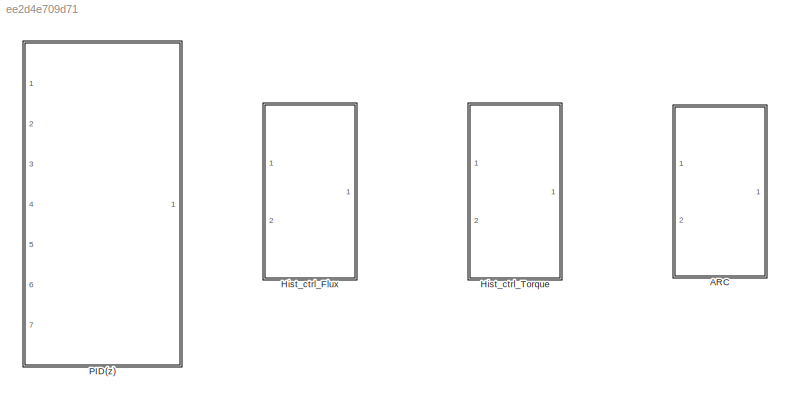
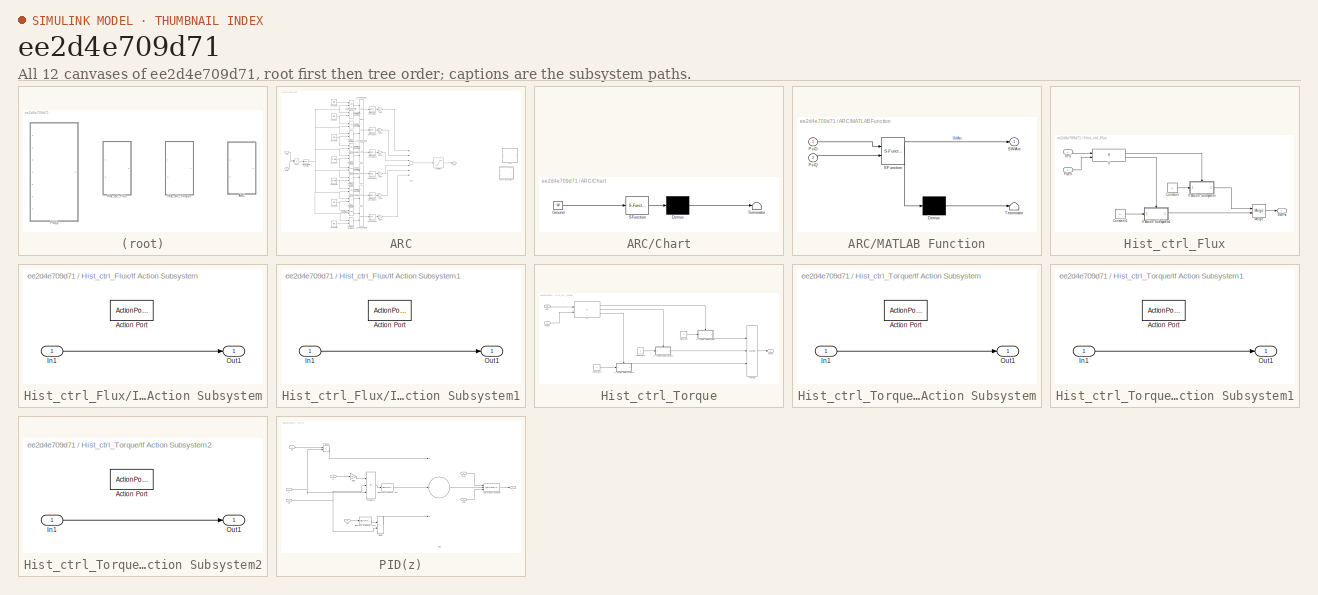
[diagram: thumbnail index - all 12 canvases of the model, root first then tree order]
MODEL slx_ee2d4e709d71
KIND library
CONFIG AbsTol = auto
CONFIG EnableMultiTasking = off
CONFIG FixedStep = auto
CONFIG MaxStep = auto
CONFIG MinStep = auto
CONFIG RelTol = 1e-3
CONFIG SampleTimeConstraint = Unconstrained
CONFIG Solver = VariableStepAuto
CONFIG SolverName = VariableStepAuto
CONFIG StartTime = 0.0
CONFIG StopTime = 10.0
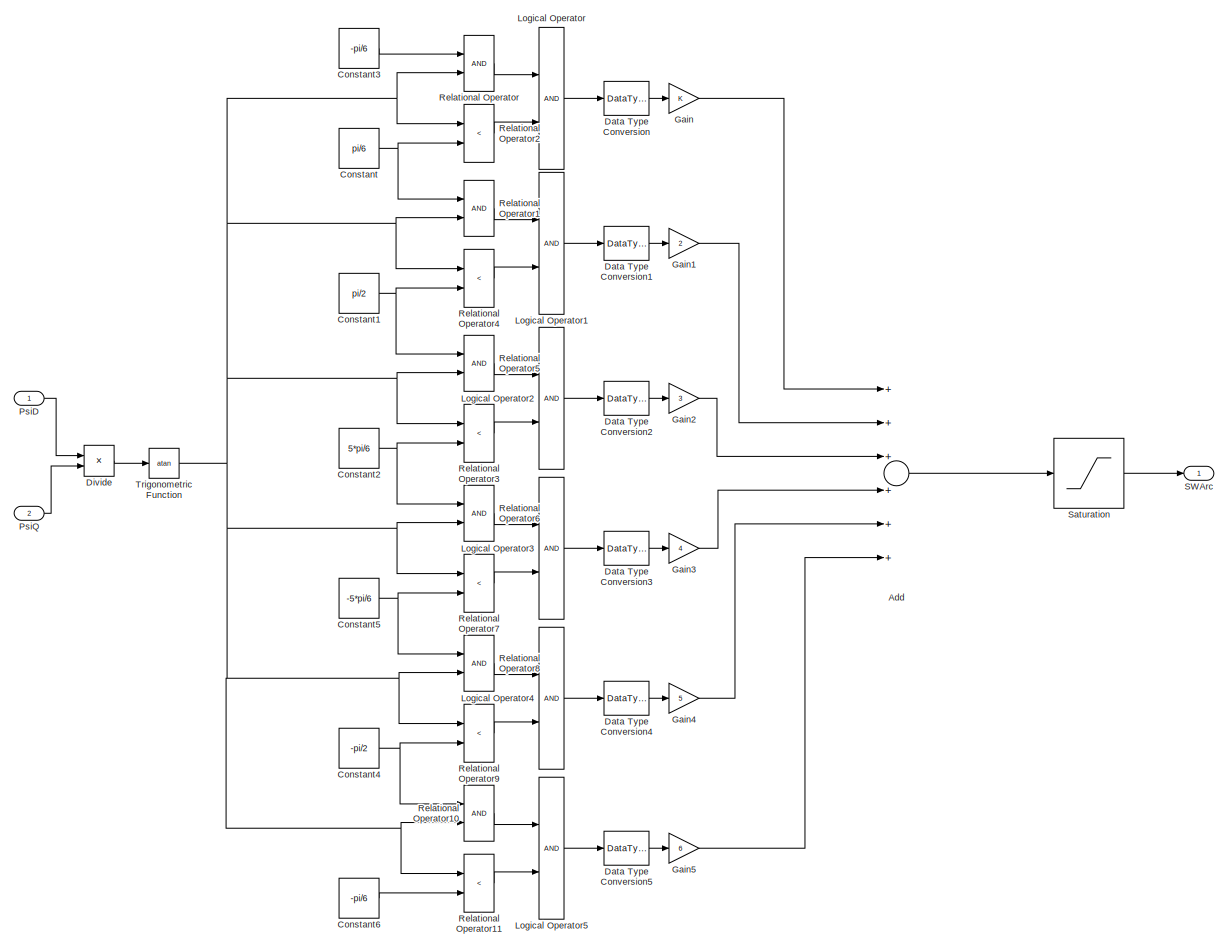
[diagram: ARC - part 1/2, most of the canvas]
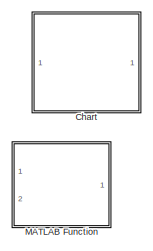
[diagram: ARC - part 2/2, middle right region]
BLOCK [SubSystem] ARC
  Ports = [2, 1]
  RequestExecContextInheritance = off
  Variant = off
BLOCK [Sum] ARC/Add
  InputSameDT = off
  Inputs = ++++++
  OutDataTypeStr = Inherit: Inherit via internal rule
  Ports = [6, 1]
  SaturateOnIntegerOverflow = off
BLOCK [SubSystem] ARC/Chart
  Commented = on
  ErrorFcn = Stateflow.Translate.translate
  PermitHierarchicalResolution = ExplicitOnly
  Ports = []
  RequestExecContextInheritance = off
  SFBlockType = Chart
  TreatAsAtomicUnit = on
  Variant = off
BLOCK [Demux] ARC/Chart/ Demux 
  Outputs = 1
  Ports = [1, 1]
BLOCK [Ground] ARC/Chart/ Ground 
BLOCK [S-Function] ARC/Chart/ SFunction 
  EnableBusSupport = off
  FunctionName = sf_sfun
  PortCounts = [1 1]
  Ports = [1, 1]
  SFcnIsStateOwnerBlock = off
  SFunctionDeploymentMode = off
  Tag = Stateflow S-Function controller_lib 3
BLOCK [Terminator] ARC/Chart/ Terminator 
BLOCK [Constant] ARC/Constant
  SampleTime = -1
  Value = pi/6
  VectorParams1D = off
BLOCK [Constant] ARC/Constant1
  SampleTime = -1
  Value = pi/2
  VectorParams1D = off
BLOCK [Constant] ARC/Constant2
  SampleTime = -1
  Value = 5*pi/6
  VectorParams1D = off
BLOCK [Constant] ARC/Constant3
  SampleTime = -1
  Value = -pi/6
  VectorParams1D = off
BLOCK [Constant] ARC/Constant4
  SampleTime = -1
  Value = -pi/2
  VectorParams1D = off
BLOCK [Constant] ARC/Constant5
  SampleTime = -1
  Value = -5*pi/6
  VectorParams1D = off
BLOCK [Constant] ARC/Constant6
  SampleTime = -1
  Value = -pi/6
  VectorParams1D = off
BLOCK [DataTypeConversion] ARC/Data Type Conversion
  OutDataTypeStr = double
  RndMeth = Floor
  SaturateOnIntegerOverflow = off
BLOCK [DataTypeConversion] ARC/Data Type Conversion1
  OutDataTypeStr = double
  RndMeth = Floor
  SaturateOnIntegerOverflow = off
BLOCK [DataTypeConversion] ARC/Data Type Conversion2
  OutDataTypeStr = double
  RndMeth = Floor
  SaturateOnIntegerOverflow = off
BLOCK [DataTypeConversion] ARC/Data Type Conversion3
  OutDataTypeStr = double
  RndMeth = Floor
  SaturateOnIntegerOverflow = off
BLOCK [DataTypeConversion] ARC/Data Type Conversion4
  OutDataTypeStr = double
  RndMeth = Floor
  SaturateOnIntegerOverflow = off
BLOCK [DataTypeConversion] ARC/Data Type Conversion5
  OutDataTypeStr = double
  RndMeth = Floor
  SaturateOnIntegerOverflow = off
BLOCK [Product] ARC/Divide
  InputSameDT = off
  Inputs = /*
  OutDataTypeStr = Inherit: Inherit via internal rule
  Ports = [2, 1]
  RndMeth = Floor
  SaturateOnIntegerOverflow = off
BLOCK [Gain] ARC/Gain
  OutDataTypeStr = Inherit: Inherit via internal rule
  ParamDataTypeStr = Inherit: Inherit via internal rule
  SaturateOnIntegerOverflow = off
BLOCK [Gain] ARC/Gain1
  Gain = 2
  OutDataTypeStr = Inherit: Inherit via internal rule
  ParamDataTypeStr = Inherit: Inherit via internal rule
  SaturateOnIntegerOverflow = off
BLOCK [Gain] ARC/Gain2
  Gain = 3
  OutDataTypeStr = Inherit: Inherit via internal rule
  ParamDataTypeStr = Inherit: Inherit via internal rule
  SaturateOnIntegerOverflow = off
BLOCK [Gain] ARC/Gain3
  Gain = 4
  OutDataTypeStr = Inherit: Inherit via internal rule
  ParamDataTypeStr = Inherit: Inherit via internal rule
  SaturateOnIntegerOverflow = off
BLOCK [Gain] ARC/Gain4
  Gain = 5
  OutDataTypeStr = Inherit: Inherit via internal rule
  ParamDataTypeStr = Inherit: Inherit via internal rule
  SaturateOnIntegerOverflow = off
BLOCK [Gain] ARC/Gain5
  Gain = 6
  OutDataTypeStr = Inherit: Inherit via internal rule
  ParamDataTypeStr = Inherit: Inherit via internal rule
  SaturateOnIntegerOverflow = off
BLOCK [Logic] ARC/Logical Operator
  AllPortsSameDT = off
  OutDataTypeStr = boolean
  Ports = [2, 1]
BLOCK [Logic] ARC/Logical Operator1
  AllPortsSameDT = off
  OutDataTypeStr = boolean
  Ports = [2, 1]
BLOCK [Logic] ARC/Logical Operator2
  AllPortsSameDT = off
  OutDataTypeStr = boolean
  Ports = [2, 1]
BLOCK [Logic] ARC/Logical Operator3
  AllPortsSameDT = off
  OutDataTypeStr = boolean
  Ports = [2, 1]
BLOCK [Logic] ARC/Logical Operator4
  AllPortsSameDT = off
  OutDataTypeStr = boolean
  Ports = [2, 1]
BLOCK [Logic] ARC/Logical Operator5
  AllPortsSameDT = off
  OutDataTypeStr = boolean
  Ports = [2, 1]
BLOCK [SubSystem] ARC/MATLAB Function
  Commented = on
  ErrorFcn = Stateflow.Translate.translate
  PermitHierarchicalResolution = ExplicitOnly
  Ports = [2, 1]
  RequestExecContextInheritance = off
  SFBlockType = MATLAB Function
  TreatAsAtomicUnit = on
  Variant = off
BLOCK [Demux] ARC/MATLAB Function/ Demux 
  Outputs = 1
  Ports = [1, 1]
BLOCK [S-Function] ARC/MATLAB Function/ SFunction 
  EnableBusSupport = off
  FunctionName = sf_sfun
  PortCounts = [2 2]
  Ports = [2, 2]
  SFcnIsStateOwnerBlock = off
  SFunctionDeploymentMode = off
  Tag = Stateflow S-Function controller_lib 2
BLOCK [Terminator] ARC/MATLAB Function/ Terminator 
BLOCK [Inport] ARC/MATLAB Function/PsiD
  IconDisplay = Port number
BLOCK [Inport] ARC/MATLAB Function/PsiQ
  IconDisplay = Port number
  Port = 2
BLOCK [Outport] ARC/MATLAB Function/SWArc
  IconDisplay = Port number
BLOCK [Inport] ARC/PsiD
  IconDisplay = Port number
BLOCK [Inport] ARC/PsiQ
  IconDisplay = Port number
  Port = 2
BLOCK [RelationalOperator] ARC/Relational Operator
  InputSameDT = off
  OutDataTypeStr = boolean
  Ports = [2, 1]
  RndMeth = Simplest
BLOCK [RelationalOperator] ARC/Relational Operator1
  InputSameDT = off
  OutDataTypeStr = boolean
  Ports = [2, 1]
  RndMeth = Simplest
BLOCK [RelationalOperator] ARC/Relational Operator10
  InputSameDT = off
  OutDataTypeStr = boolean
  Ports = [2, 1]
  RndMeth = Simplest
BLOCK [RelationalOperator] ARC/Relational Operator11
  InputSameDT = off
  Operator = <
  OutDataTypeStr = boolean
  Ports = [2, 1]
  RndMeth = Simplest
BLOCK [RelationalOperator] ARC/Relational Operator2
  InputSameDT = off
  Operator = <
  OutDataTypeStr = boolean
  Ports = [2, 1]
  RndMeth = Simplest
BLOCK [RelationalOperator] ARC/Relational Operator3
  InputSameDT = off
  Operator = <
  OutDataTypeStr = boolean
  Ports = [2, 1]
  RndMeth = Simplest
BLOCK [RelationalOperator] ARC/Relational Operator4
  InputSameDT = off
  Operator = <
  OutDataTypeStr = boolean
  Ports = [2, 1]
  RndMeth = Simplest
BLOCK [RelationalOperator] ARC/Relational Operator5
  InputSameDT = off
  OutDataTypeStr = boolean
  Ports = [2, 1]
  RndMeth = Simplest
BLOCK [RelationalOperator] ARC/Relational Operator6
  InputSameDT = off
  OutDataTypeStr = boolean
  Ports = [2, 1]
  RndMeth = Simplest
BLOCK [RelationalOperator] ARC/Relational Operator7
  InputSameDT = off
  Operator = <
  OutDataTypeStr = boolean
  Ports = [2, 1]
  RndMeth = Simplest
BLOCK [RelationalOperator] ARC/Relational Operator8
  InputSameDT = off
  OutDataTypeStr = boolean
  Ports = [2, 1]
  RndMeth = Simplest
BLOCK [RelationalOperator] ARC/Relational Operator9
  InputSameDT = off
  Operator = <
  OutDataTypeStr = boolean
  Ports = [2, 1]
  RndMeth = Simplest
BLOCK [Outport] ARC/SWArc
  IconDisplay = Port number
BLOCK [Saturate] ARC/Saturation
  InputPortMap = u0
  LowerLimit = 1
  Ports = [1, 1]
  UpperLimit = 6
BLOCK [Trigonometry] ARC/Trigonometric Function
  Operator = atan
  Ports = [1, 1]
BLOCK [SubSystem] Hist_ctrl_Flux
  Ports = [2, 1]
  RequestExecContextInheritance = off
  Variant = off
BLOCK [Constant] Hist_ctrl_Flux/Constant
BLOCK [Constant] Hist_ctrl_Flux/Constant1
  Value = 0
BLOCK [If] Hist_ctrl_Flux/If
  IfExpression = u1 > u2
  NumInputs = 2
  Ports = [2, 2]
BLOCK [SubSystem] Hist_ctrl_Flux/If Action Subsystem
  Ports = [1, 1, 0, 0, 0, 0, 0, 1]
  RequestExecContextInheritance = off
  TreatAsAtomicUnit = on
  Variant = off
BLOCK [ActionPort] Hist_ctrl_Flux/If Action Subsystem/Action Port
BLOCK [Inport] Hist_ctrl_Flux/If Action Subsystem/In1
  IconDisplay = Port number
BLOCK [Outport] Hist_ctrl_Flux/If Action Subsystem/Out1
  IconDisplay = Port number
BLOCK [SubSystem] Hist_ctrl_Flux/If Action Subsystem1
  Ports = [1, 1, 0, 0, 0, 0, 0, 1]
  RequestExecContextInheritance = off
  TreatAsAtomicUnit = on
  Variant = off
BLOCK [ActionPort] Hist_ctrl_Flux/If Action Subsystem1/Action Port
BLOCK [Inport] Hist_ctrl_Flux/If Action Subsystem1/In1
  IconDisplay = Port number
BLOCK [Outport] Hist_ctrl_Flux/If Action Subsystem1/Out1
  IconDisplay = Port number
BLOCK [Merge] Hist_ctrl_Flux/Merge
  Ports = [2, 1]
BLOCK [Inport] Hist_ctrl_Flux/Psierr
  IconDisplay = Port number
  Port = 2
BLOCK [Outport] Hist_ctrl_Flux/SWPsi
  IconDisplay = Port number
BLOCK [Inport] Hist_ctrl_Flux/dPsi
  IconDisplay = Port number
BLOCK [SubSystem] Hist_ctrl_Torque
  Ports = [2, 1]
  RequestExecContextInheritance = off
  Variant = off
BLOCK [Constant] Hist_ctrl_Torque/Constant
BLOCK [Constant] Hist_ctrl_Torque/Constant1
  Value = 2
BLOCK [Constant] Hist_ctrl_Torque/Constant2
  Value = 3
BLOCK [If] Hist_ctrl_Torque/If
  ElseIfExpressions = u1 < -u2
  IfExpression = u1 > u2
  NumInputs = 2
  Ports = [2, 3]
BLOCK [SubSystem] Hist_ctrl_Torque/If Action Subsystem
  Ports = [1, 1, 0, 0, 0, 0, 0, 1]
  RequestExecContextInheritance = off
  TreatAsAtomicUnit = on
  Variant = off
BLOCK [ActionPort] Hist_ctrl_Torque/If Action Subsystem/Action Port
  ActionType = then
BLOCK [Inport] Hist_ctrl_Torque/If Action Subsystem/In1
  IconDisplay = Port number
BLOCK [Outport] Hist_ctrl_Torque/If Action Subsystem/Out1
  IconDisplay = Port number
BLOCK [SubSystem] Hist_ctrl_Torque/If Action Subsystem1
  Ports = [1, 1, 0, 0, 0, 0, 0, 1]
  RequestExecContextInheritance = off
  TreatAsAtomicUnit = on
  Variant = off
BLOCK [ActionPort] Hist_ctrl_Torque/If Action Subsystem1/Action Port
  ActionType = elseif
BLOCK [Inport] Hist_ctrl_Torque/If Action Subsystem1/In1
  IconDisplay = Port number
BLOCK [Outport] Hist_ctrl_Torque/If Action Subsystem1/Out1
  IconDisplay = Port number
BLOCK [SubSystem] Hist_ctrl_Torque/If Action Subsystem2
  Ports = [1, 1, 0, 0, 0, 0, 0, 1]
  RequestExecContextInheritance = off
  TreatAsAtomicUnit = on
  Variant = off
BLOCK [ActionPort] Hist_ctrl_Torque/If Action Subsystem2/Action Port
  ActionType = else
BLOCK [Inport] Hist_ctrl_Torque/If Action Subsystem2/In1
  IconDisplay = Port number
BLOCK [Outport] Hist_ctrl_Torque/If Action Subsystem2/Out1
  IconDisplay = Port number
BLOCK [Merge] Hist_ctrl_Torque/Merge
  Inputs = 3
  Ports = [3, 1]
BLOCK [Outport] Hist_ctrl_Torque/SWM
  IconDisplay = Port number
BLOCK [Inport] Hist_ctrl_Torque/Trqerr
  IconDisplay = Port number
  Port = 2
BLOCK [Inport] Hist_ctrl_Torque/dm
  IconDisplay = Port number
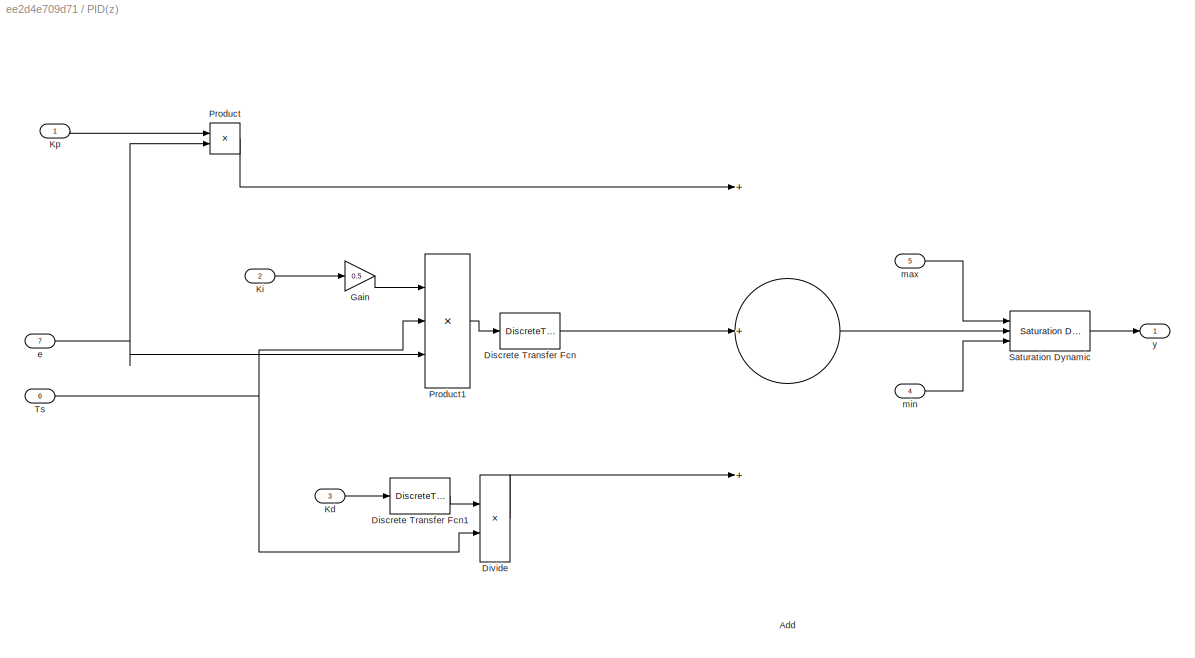
BLOCK [SubSystem] PID(z)
  Ports = [7, 1]
  RequestExecContextInheritance = off
  Variant = off
BLOCK [Sum] PID(z)/Add
  InputSameDT = off
  Inputs = +++
  OutDataTypeStr = Inherit: Inherit via internal rule
  Ports = [3, 1]
  SaturateOnIntegerOverflow = off
BLOCK [DiscreteTransferFcn] PID(z)/Discrete Transfer Fcn
  Denominator = [1 -1]
  InputPortMap = u0
  Numerator = [1 1]
  Ports = [1, 1]
BLOCK [DiscreteTransferFcn] PID(z)/Discrete Transfer Fcn1
  Denominator = [1 0]
  InputPortMap = u0
  Numerator = [1 -1]
  Ports = [1, 1]
BLOCK [Product] PID(z)/Divide
  InputSameDT = off
  Inputs = */
  OutDataTypeStr = Inherit: Inherit via internal rule
  Ports = [2, 1]
  RndMeth = Floor
  SaturateOnIntegerOverflow = off
BLOCK [Gain] PID(z)/Gain
  Gain = 0.5
  OutDataTypeStr = Inherit: Inherit via internal rule
  ParamDataTypeStr = Inherit: Inherit via internal rule
  SaturateOnIntegerOverflow = off
BLOCK [Inport] PID(z)/Kd
  IconDisplay = Port number
  Port = 3
BLOCK [Inport] PID(z)/Ki
  IconDisplay = Port number
  Port = 2
BLOCK [Inport] PID(z)/Kp
  IconDisplay = Port number
BLOCK [Product] PID(z)/Product
  InputSameDT = off
  OutDataTypeStr = Inherit: Inherit via internal rule
  Ports = [2, 1]
  RndMeth = Floor
  SaturateOnIntegerOverflow = off
BLOCK [Product] PID(z)/Product1
  InputSameDT = off
  Inputs = 3
  OutDataTypeStr = Inherit: Inherit via internal rule
  Ports = [3, 1]
  RndMeth = Floor
  SaturateOnIntegerOverflow = off
BLOCK [Reference] PID(z)/Saturation Dynamic  REF=simulink/Discontinuities/Saturation
Dynamic
  Ports = [3, 1]
  SourceBlock = simulink/Discontinuities/Saturation\nDynamic
  SourceProductBaseCode = SL
  SourceProductName = Simulink
  SourceType = Saturation Dynamic
BLOCK [Inport] PID(z)/Ts
  IconDisplay = Port number
  Port = 6
BLOCK [Inport] PID(z)/e
  IconDisplay = Port number
  Port = 7
BLOCK [Inport] PID(z)/max 
  IconDisplay = Port number
  Port = 5
BLOCK [Inport] PID(z)/min
  IconDisplay = Port number
  Port = 4
BLOCK [Outport] PID(z)/y
  IconDisplay = Port number
LINE ARC/Add:1 -> ARC/Saturation:1
NET ARC/Constant1:1 -> ARC/Relational Operator4:2, ARC/Relational Operator5:1
NET ARC/Constant2:1 -> ARC/Relational Operator3:2, ARC/Relational Operator6:1
LINE ARC/Constant3:1 -> ARC/Relational Operator:1
NET ARC/Constant4:1 -> ARC/Relational Operator10:1, ARC/Relational Operator9:2
NET ARC/Constant5:1 -> ARC/Relational Operator7:2, ARC/Relational Operator8:1
LINE ARC/Constant6:1 -> ARC/Relational Operator11:2
NET ARC/Constant:1 -> ARC/Relational Operator1:1, ARC/Relational Operator2:2
LINE ARC/Data Type Conversion1:1 -> ARC/Gain1:1
LINE ARC/Data Type Conversion2:1 -> ARC/Gain2:1
LINE ARC/Data Type Conversion3:1 -> ARC/Gain3:1
LINE ARC/Data Type Conversion4:1 -> ARC/Gain4:1
LINE ARC/Data Type Conversion5:1 -> ARC/Gain5:1
LINE ARC/Data Type Conversion:1 -> ARC/Gain:1
LINE ARC/Divide:1 -> ARC/Trigonometric Function:1
LINE ARC/Gain1:1 -> ARC/Add:2
LINE ARC/Gain2:1 -> ARC/Add:3
LINE ARC/Gain3:1 -> ARC/Add:4
LINE ARC/Gain4:1 -> ARC/Add:5
LINE ARC/Gain5:1 -> ARC/Add:6
LINE ARC/Gain:1 -> ARC/Add:1
LINE ARC/Logical Operator1:1 -> ARC/Data Type Conversion1:1
LINE ARC/Logical Operator2:1 -> ARC/Data Type Conversion2:1
LINE ARC/Logical Operator3:1 -> ARC/Data Type Conversion3:1
LINE ARC/Logical Operator4:1 -> ARC/Data Type Conversion4:1
LINE ARC/Logical Operator5:1 -> ARC/Data Type Conversion5:1
LINE ARC/Logical Operator:1 -> ARC/Data Type Conversion:1
LINE ARC/PsiD:1 -> ARC/Divide:1
LINE ARC/PsiQ:1 -> ARC/Divide:2
LINE ARC/Relational Operator10:1 -> ARC/Logical Operator5:1
LINE ARC/Relational Operator11:1 -> ARC/Logical Operator5:2
LINE ARC/Relational Operator1:1 -> ARC/Logical Operator1:1
LINE ARC/Relational Operator2:1 -> ARC/Logical Operator:2
LINE ARC/Relational Operator3:1 -> ARC/Logical Operator2:2
LINE ARC/Relational Operator4:1 -> ARC/Logical Operator1:2
LINE ARC/Relational Operator5:1 -> ARC/Logical Operator2:1
LINE ARC/Relational Operator6:1 -> ARC/Logical Operator3:1
LINE ARC/Relational Operator7:1 -> ARC/Logical Operator3:2
LINE ARC/Relational Operator8:1 -> ARC/Logical Operator4:1
LINE ARC/Relational Operator9:1 -> ARC/Logical Operator4:2
LINE ARC/Relational Operator:1 -> ARC/Logical Operator:1
LINE ARC/Saturation:1 -> ARC/SWArc:1
NET ARC/Trigonometric Function:1 -> ARC/Relational Operator10:2, ARC/Relational Operator11:1, ARC/Relational Operator1:2, ARC/Relational Operator2:1, ARC/Relational Operator3:1, ARC/Relational Operator4:1, ARC/Relational Operator5:2, ARC/Relational Operator6:2, ARC/Relational Operator7:1, ARC/Relational Operator8:2, ARC/Relational Operator9:1, ARC/Relational Operator:2
LINE Hist_ctrl_Flux/Constant1:1 -> Hist_ctrl_Flux/If Action Subsystem1:1
LINE Hist_ctrl_Flux/Constant:1 -> Hist_ctrl_Flux/If Action Subsystem:1
LINE Hist_ctrl_Flux/If Action Subsystem/In1:1 -> Hist_ctrl_Flux/If Action Subsystem/Out1:1
LINE Hist_ctrl_Flux/If Action Subsystem1/In1:1 -> Hist_ctrl_Flux/If Action Subsystem1/Out1:1
LINE Hist_ctrl_Flux/If Action Subsystem1:1 -> Hist_ctrl_Flux/Merge:2
LINE Hist_ctrl_Flux/If Action Subsystem:1 -> Hist_ctrl_Flux/Merge:1
LINE Hist_ctrl_Flux/If:1 -> Hist_ctrl_Flux/If Action Subsystem:ifaction
LINE Hist_ctrl_Flux/If:2 -> Hist_ctrl_Flux/If Action Subsystem1:ifaction
LINE Hist_ctrl_Flux/Merge:1 -> Hist_ctrl_Flux/SWPsi:1
LINE Hist_ctrl_Flux/Psierr:1 -> Hist_ctrl_Flux/If:2
LINE Hist_ctrl_Flux/dPsi:1 -> Hist_ctrl_Flux/If:1
LINE Hist_ctrl_Torque/Constant1:1 -> Hist_ctrl_Torque/If Action Subsystem2:1
LINE Hist_ctrl_Torque/Constant2:1 -> Hist_ctrl_Torque/If Action Subsystem1:1
LINE Hist_ctrl_Torque/Constant:1 -> Hist_ctrl_Torque/If Action Subsystem:1
LINE Hist_ctrl_Torque/If Action Subsystem/In1:1 -> Hist_ctrl_Torque/If Action Subsystem/Out1:1
LINE Hist_ctrl_Torque/If Action Subsystem1/In1:1 -> Hist_ctrl_Torque/If Action Subsystem1/Out1:1
LINE Hist_ctrl_Torque/If Action Subsystem1:1 -> Hist_ctrl_Torque/Merge:2
LINE Hist_ctrl_Torque/If Action Subsystem2/In1:1 -> Hist_ctrl_Torque/If Action Subsystem2/Out1:1
LINE Hist_ctrl_Torque/If Action Subsystem2:1 -> Hist_ctrl_Torque/Merge:3
LINE Hist_ctrl_Torque/If Action Subsystem:1 -> Hist_ctrl_Torque/Merge:1
LINE Hist_ctrl_Torque/If:1 -> Hist_ctrl_Torque/If Action Subsystem:ifaction
LINE Hist_ctrl_Torque/If:2 -> Hist_ctrl_Torque/If Action Subsystem1:ifaction
LINE Hist_ctrl_Torque/If:3 -> Hist_ctrl_Torque/If Action Subsystem2:ifaction
LINE Hist_ctrl_Torque/Merge:1 -> Hist_ctrl_Torque/SWM:1
LINE Hist_ctrl_Torque/Trqerr:1 -> Hist_ctrl_Torque/If:2
LINE Hist_ctrl_Torque/dm:1 -> Hist_ctrl_Torque/If:1
LINE PID(z)/Add:1 -> PID(z)/Saturation Dynamic:2
LINE PID(z)/Discrete Transfer Fcn1:1 -> PID(z)/Divide:1
LINE PID(z)/Discrete Transfer Fcn:1 -> PID(z)/Add:2
LINE PID(z)/Divide:1 -> PID(z)/Add:3
LINE PID(z)/Gain:1 -> PID(z)/Product1:1
LINE PID(z)/Kd:1 -> PID(z)/Discrete Transfer Fcn1:1
LINE PID(z)/Ki:1 -> PID(z)/Gain:1
LINE PID(z)/Kp:1 -> PID(z)/Product:1
LINE PID(z)/Product1:1 -> PID(z)/Discrete Transfer Fcn:1
LINE PID(z)/Product:1 -> PID(z)/Add:1
LINE PID(z)/Saturation Dynamic:1 -> PID(z)/y:1
NET PID(z)/Ts:1 -> PID(z)/Divide:2, PID(z)/Product1:2
NET PID(z)/e:1 -> PID(z)/Product1:3, PID(z)/Product:2
LINE PID(z)/max :1 -> PID(z)/Saturation Dynamic:1
LINE PID(z)/min:1 -> PID(z)/Saturation Dynamic:3
note: NET lines group one-source signal fan-out (src -> all destinations, sorted); 1:1 wires keep LINE
CHART ARC/MATLAB Function states=1 transitions=1
  STATE_LABEL 'eML_blk_kernel()'
  STATE_LABEL 'SCRIPT:\nfunction SWArc = arc_function(PsiD,PsiQ)\n\nangle = atan(PsiQ/PsiD);\ndouble x;\n    \nif (11*pi/6 < angle) && (angle <= pi/6)\n        x = 1; \n        \n        elseif (pi/6 < angle) && (angle <= pi/2)\n            x = 2;\n               \n            elseif (pi/2 < angle) && (angle <= 5*pi/6)\n                 x = 3;\n                    \n                 elseif (5*pi/6 < angle) && (angle <= 7*pi/6)...<+219ch>'
CHART ARC/Chart states=0 transitions=7
